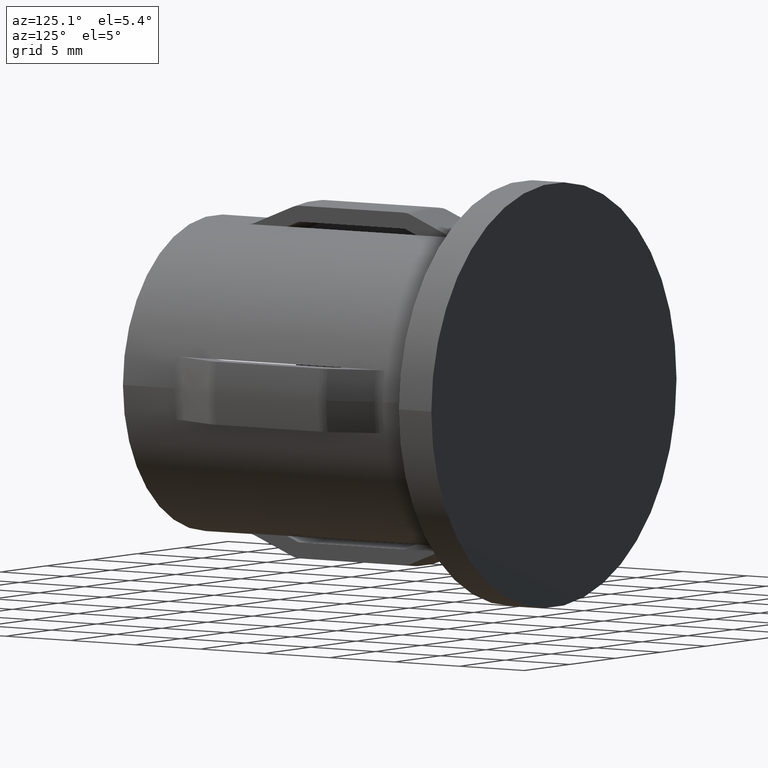
[diagram: clean part render]
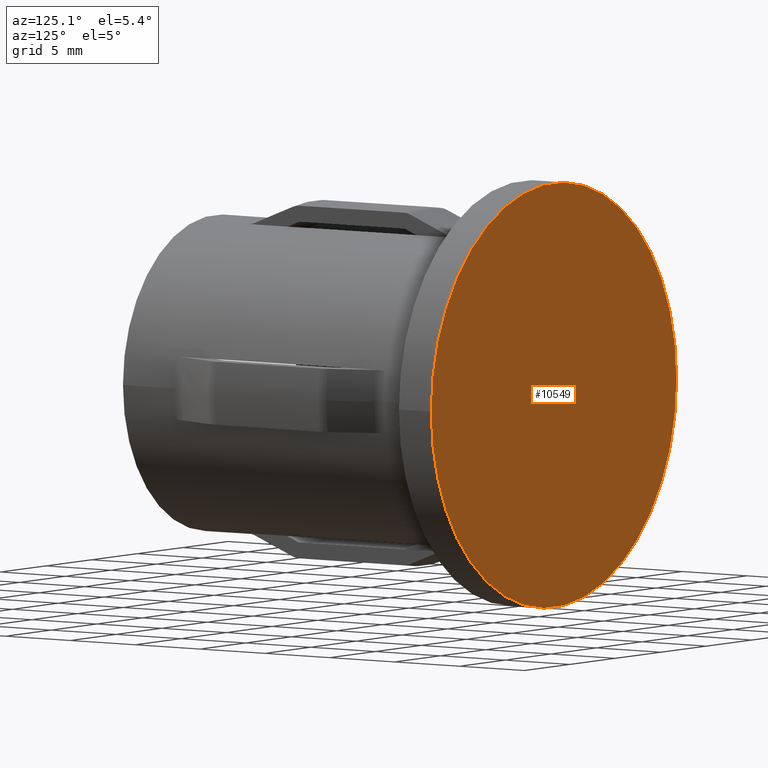
[diagram: same view with one face highlighted and labeled with its STEP entity id]
A machine part, auxiliary view. The second image highlights one B-rep face of the part: STEP entity #10549.
In plain terms, the highlighted planar face has unit normal (-0, -1, 0).
Its self-contained STEP definition (entity closure, byte-faithful):
#15 = CARTESIAN_POINT ( 'NONE',  ( 13.44999999999999929, 26.19999999999999929, 1.647149944853189991E-15 ) ) ;
#98 = AXIS2_PLACEMENT_3D ( 'NONE', #10256, #9127, #2407 ) ;
#1397 = CARTESIAN_POINT ( 'NONE',  ( -13.44999999999999929, 26.19999999999999929, 0.000000000000000000 ) ) ;
#1594 = EDGE_LOOP ( 'NONE', ( #3866, #13424 ) ) ;
#1788 = FACE_OUTER_BOUND ( 'NONE', #1594, .T. ) ;
#1980 = DIRECTION ( 'NONE',  ( -7.347880794884120229E-17, -1.000000000000000000, 0.000000000000000000 ) ) ;
#2325 = CIRCLE ( 'NONE', #98, 13.44999999999999929 ) ;
#2407 = DIRECTION ( 'NONE',  ( -1.000000000000000000, 0.000000000000000000, 0.000000000000000000 ) ) ;
#2570 = AXIS2_PLACEMENT_3D ( 'NONE', #11090, #3101, #5358 ) ;
#3101 = DIRECTION ( 'NONE',  ( 7.347880794884120229E-17, 1.000000000000000000, -0.000000000000000000 ) ) ;
#3866 = ORIENTED_EDGE ( 'NONE', *, *, #5171, .T. ) ;
#5171 = EDGE_CURVE ( 'NONE', #9776, #12967, #11178, .T. ) ;
#5358 = DIRECTION ( 'NONE',  ( -1.000000000000000000, 0.000000000000000000, 0.000000000000000000 ) ) ;
#5778 = AXIS2_PLACEMENT_3D ( 'NONE', #13198, #1980, #10822 ) ;
#6396 = PLANE ( 'NONE',  #5778 ) ;
#9127 = DIRECTION ( 'NONE',  ( 7.347880794884120229E-17, 1.000000000000000000, -0.000000000000000000 ) ) ;
#9776 = VERTEX_POINT ( 'NONE', #1397 ) ;
#10256 = CARTESIAN_POINT ( 'NONE',  ( 3.673940397442063812E-16, 26.19999999999999929, 0.000000000000000000 ) ) ;
#10549 = ADVANCED_FACE ( 'NONE', ( #1788 ), #6396, .F. ) ;
#10822 = DIRECTION ( 'NONE',  ( 1.000000000000000000, -7.347880794884120229E-17, 0.000000000000000000 ) ) ;
#11090 = CARTESIAN_POINT ( 'NONE',  ( 3.673940397442063812E-16, 26.19999999999999929, 0.000000000000000000 ) ) ;
#11178 = CIRCLE ( 'NONE', #2570, 13.44999999999999929 ) ;
#12727 = EDGE_CURVE ( 'NONE', #12967, #9776, #2325, .T. ) ;
#12967 = VERTEX_POINT ( 'NONE', #15 ) ;
#13198 = CARTESIAN_POINT ( 'NONE',  ( 3.673940397442063319E-16, 26.19999999999999929, 0.000000000000000000 ) ) ;
#13424 = ORIENTED_EDGE ( 'NONE', *, *, #12727, .T. ) ;